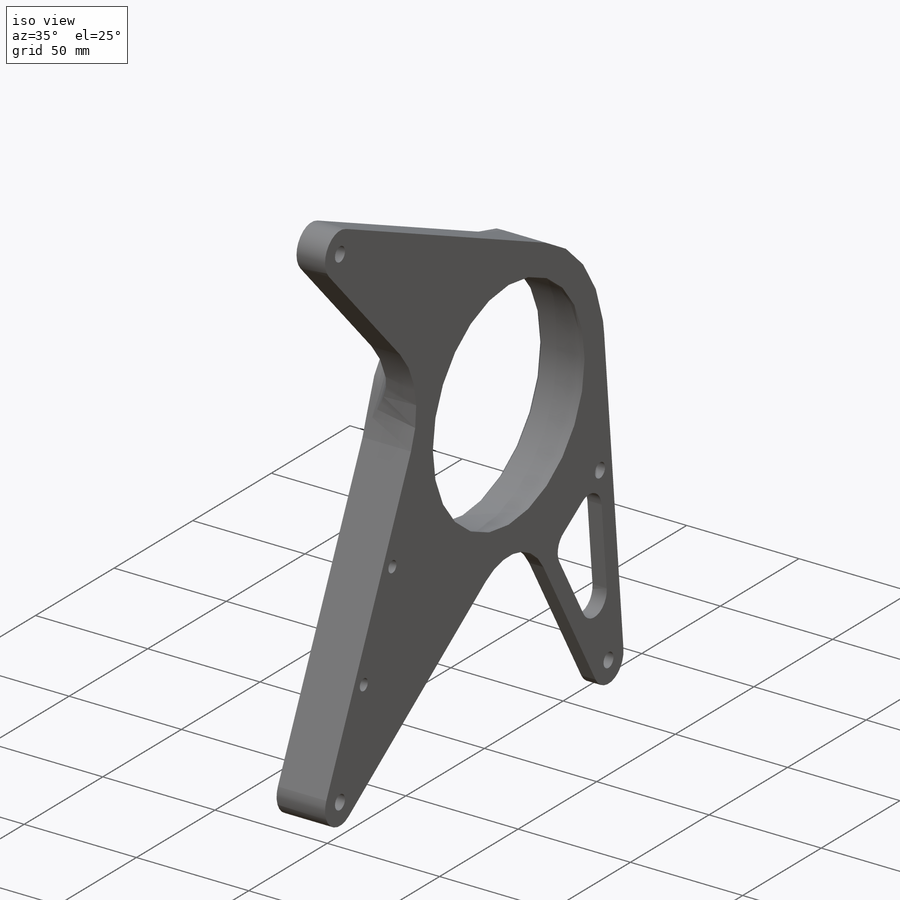
[diagram: iso view]
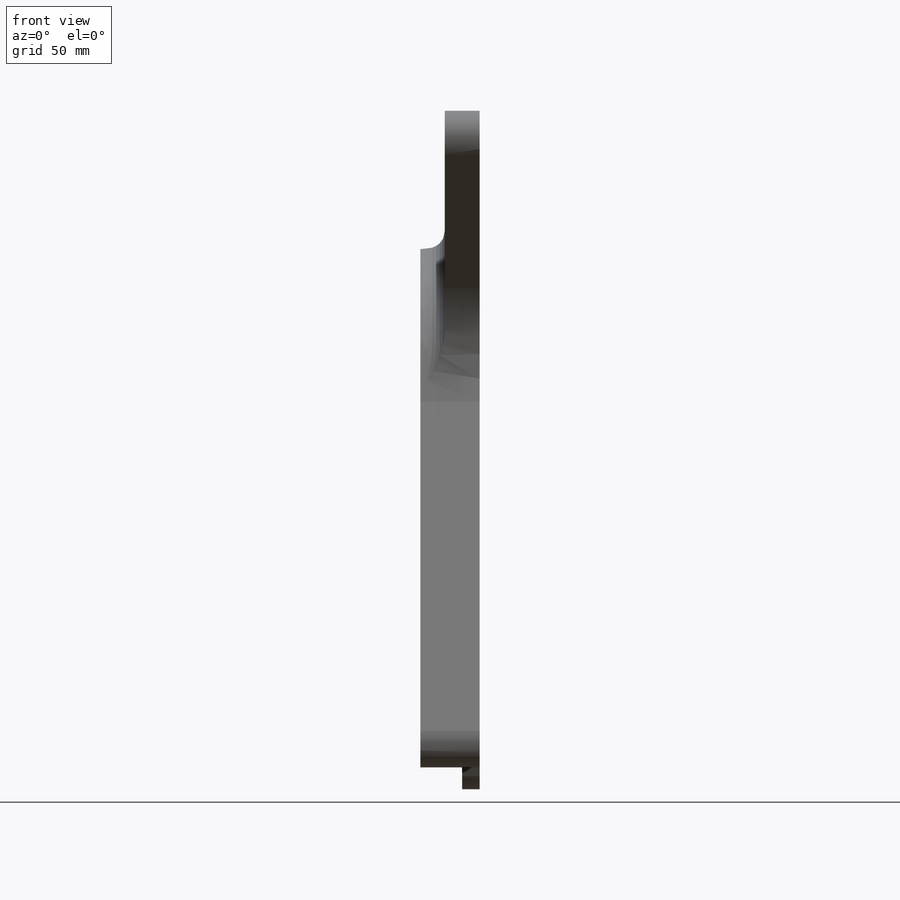
[diagram: front view]
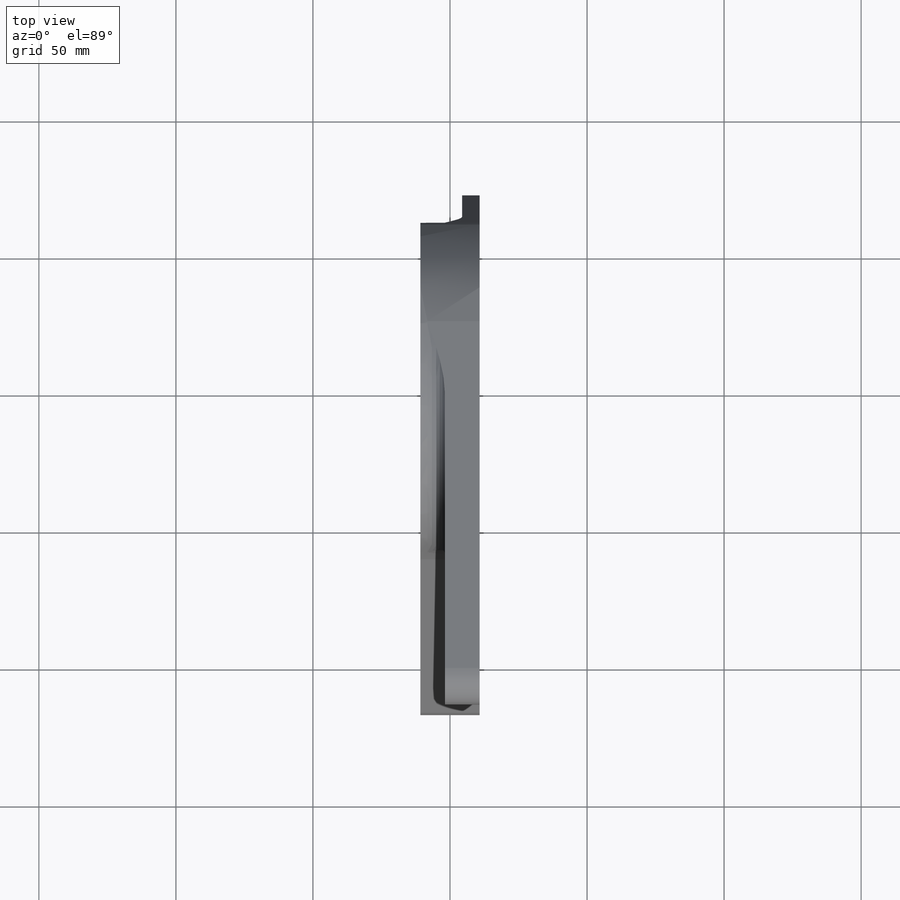
[diagram: top view]
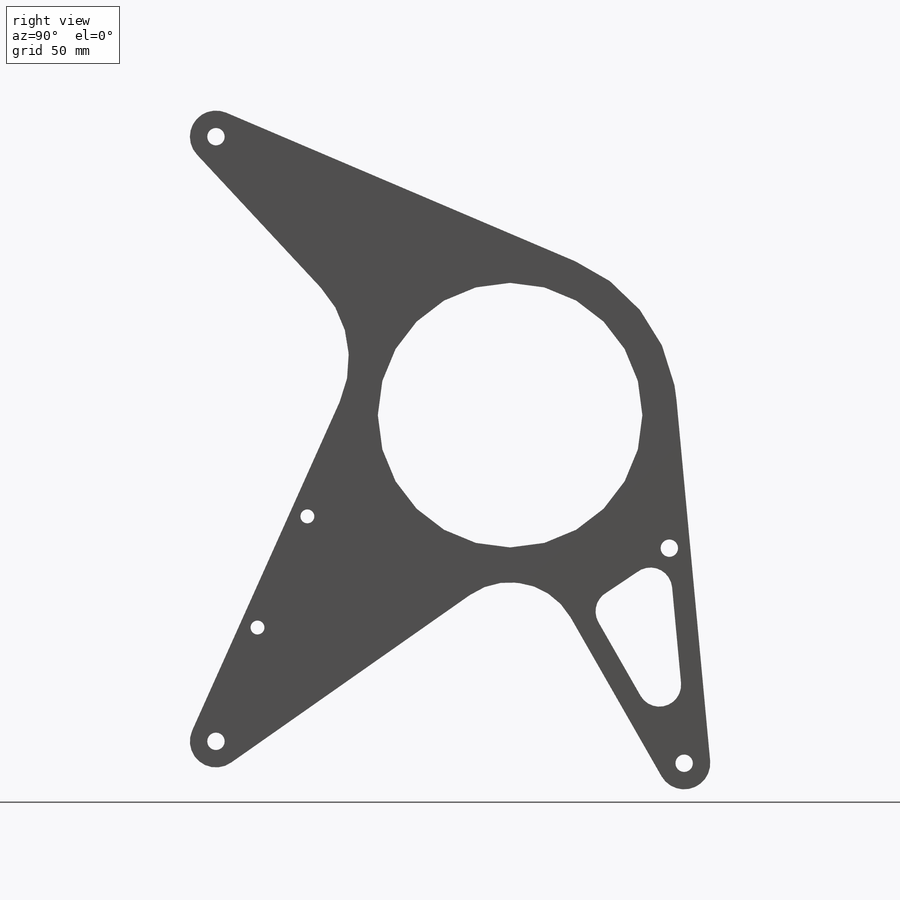
[diagram: right view]
SOLIDWORKS PART (.sldprt)
format: sldprt  version: not decoded by parser v0  size: 1,580,544 bytes
history: native  units: mm
features: sketch x21, cut_extrude x14, fillet x4, extrude x2, mirror x2, material x1, chamfer x1, plane x1 (+11 scaffold rows collapsed)
feature tree (57):
  scaffold x11  (default folders/planes/origin — collapsed)
  material  "6061-T6 (SS)"
  sketch  "Sketch1"  dims[D1=96.52mm D6=25.4mm D7=6.35mm D9=241.3mm D2=116.84mm D3=88.9mm D4=106.299mm D5=165.1mm D8=25.4mm D10=63.5mm D11=220.6mm D12=127.0mm]
  sketch  "Sketch2"  dims[c1.D2=19.05mm c1.D3=21.59mm c1.D1=25.4mm c2.D2=12.7mm c2.D3=12.7mm]
  extrude  "Boss-Extrude1"  Depth=260.35mm
  sketch  "Sketch3"
  cut_extrude  "Cut-Extrude1"  [1 undecoded]
  sketch  "Sketch4"  dims[c1.D3=100.0mm c1.D5=19.05mm c1.D6=12.7mm c1.D7=25.4mm c1.D1=9.525mm c1.D2=9.525mm c2.D1=31.75mm c2.D2=25.4mm c2.D3=12.7mm c2.D4=12.7mm c2.D6=25.4mm c2.D7=25.4mm c3.D6=31.75mm c3.D1=31.75mm c3.D8=22.86mm c3.D9=22.86mm c3.D4=12.7mm]
  cut_extrude  "Cut-Extrude2"  Depth=260.35mm
  sketch  "Sketch5"  dims[c1.D5=12.7mm c1.D6=12.7mm c1.D7=12.7mm c1.D8=25.4mm c1.D10=12.7mm c1.D11=12.7mm c1.D12=96.52mm c1.D15=6.35mm c1.D16=31.75mm c1.D17=12.7mm c1.D18=12.7mm c1.D9=96.52mm c1.D2=38.1mm c1.D1=4.7625mm c2.D2=4.7625mm c2.D3=6.35mm c2.D4=12.7mm c2.D8=12.7mm c3.D4=6.35mm c3.D9=6.35mm c3.D12=9.525mm c3.D8=~68.023495mm c4.D8=60.0deg c4.D9=~223.162846mm c5.D9=55.0deg c5.D10=3.81mm c5.D11=6.35mm c5.D13=6.35mm c5.D14=184.15mm c6.D10=152.4mm c6.D15=12.7mm c7.D10=82.55mm c7.D9=101.6mm c7.D8=~223.162846mm c8.D8=52.5deg c9.D8=~223.162846mm c10.D8=50.0deg c10.D10=~70.376151mm c10.D9=56.9708mm c11.D9=60.0deg c11.D8=~223.162846mm c12.D8=50.0deg c13.D8=~48.671184mm c14.D8=63.0deg c15.D8=~108.892244mm c16.D8=30.0deg c16.D9=~47.347522mm c17.D9=~31.52392deg c18.D9=~138.541011mm c19.D9=~21.128129deg c19.D10=~223.162846mm c20.D10=~43.43317deg c20.D14=~160.241662mm c21.D14=~47.955527deg c21.D8=~55.19795mm c22.D8=31.0deg c23.D8=~106.593107mm c24.D8=~30.658749deg c25.D8=~138.541011mm c26.D8=24.0deg c26.D9=9.525mm c26.D1=~223.162846mm c27.D1=~43.43317deg c27.D3=~160.241662mm c28.D3=~47.955527deg]
  sketch  "Sketch7"  dims[D1=7.938mm]
  cut_extrude  "Cut-Extrude3"  [1 undecoded]
  sketch  "Sketch9"  dims[D1=100.0mm]
  cut_extrude  "Cut-Extrude9"  Depth=20mm
  sketch  "Sketch14"  dims[D1=0.0mm D2=0.0mm D3=0.0mm D4=0.0mm]
  cut_extrude  "Cut-Extrude13"  [1 undecoded]
  sketch  "Sketch20"
  cut_extrude  "Cut-Extrude17"  Depth=8.89mm
  sketch  "Sketch19"  dims[D1=9.525mm]
  cut_extrude  "Cut-Extrude16"  Depth=15.24mm
  fillet  "Fillet12"  Radius=6.35mm
  sketch  "Sketch17"  dims[c1.D4=6.35mm c1.D5=5.08mm c1.D8=7.874mm c1.D7=6.35mm c2.D4=7.9375mm c2.D5=12.7mm c2.D6=6.35mm c2.D9=8.89mm c3.D6=38.1mm c3.D7=12.7mm c3.D9=5.08mm c3.D10=~36.693877mm c4.D6=38.1mm c4.D7=7.62mm c4.D8=16.51mm c4.D1=7.9375mm c4.D2=7.9375mm c4.D3=6.35mm]
  cut_extrude  "Cut-Extrude14"  Depth=19.05mm
  sketch  "Sketch18"  dims[D1=6.35mm]
  cut_extrude  "Cut-Extrude15"  [1 undecoded]
  sketch  "Sketch21"  dims[c1.D6=11.1125mm c1.D7=6.35mm c1.D8=11.1125mm c1.D9=5.08mm c1.D10=5.08mm c1.D12=12.7mm c1.D13=6.35mm c1.D14=6.35mm c1.D15=6.35mm c2.D10=44.45mm c2.D11=15.24mm c2.D1=6.35mm c2.D2=6.35mm c2.D3=6.35mm c2.D4=6.35mm c2.D5=6.35mm]
  cut_extrude  "Cut-Extrude18"  Depth=17.78mm
  sketch  "Sketch23"
  cut_extrude  "Cut-Extrude19"  [1 undecoded]
  fillet  "Fillet13"  Radius=3.175mm
  chamfer  "Chamfer1"  Distance=1mm Angle=45deg
  mirror  "Mirror1"
  plane  "Plane1"
  sketch  "Sketch24"
  cut_extrude  "Cut-Extrude20"  [1 undecoded]
  sketch  "Sketch25"  dims[c1.D1=~66.284433mm c2.D1=24.38deg c2.D2=254.0mm c2.D3=~235.262281mm c2.D4=~101.619074mm c2.D5=~104.847775mm c2.D6=~231.350263mm]
  sketch  "Sketch26"
  extrude  "Boss-Extrude2"  [1 undecoded]
  sketch  "Sketch27"
  cut_extrude  "Cut-Extrude21"  Depth=8.89mm
  fillet  "Fillet14"  Radius=6.35mm
  sketch  "Sketch28"  dims[D2=6.35mm D1=6.35mm]
  cut_extrude  "Cut-Extrude22"  Depth=8.89mm
  fillet  "Fillet15"  Radius=3.175mm
  sketch  "Sketch29"
  sketch  "Sketch30"
  mirror  "Coordinate System2"
decode coverage: 27 of 44 modeling features carry decoded parameters
note: ~ marks probable driven/reference dimensions
note: 7 parameter values undecoded
summary: no parameter record found for 7 features
note: suppression state not decoded; provenance and decode notes live in map.json
